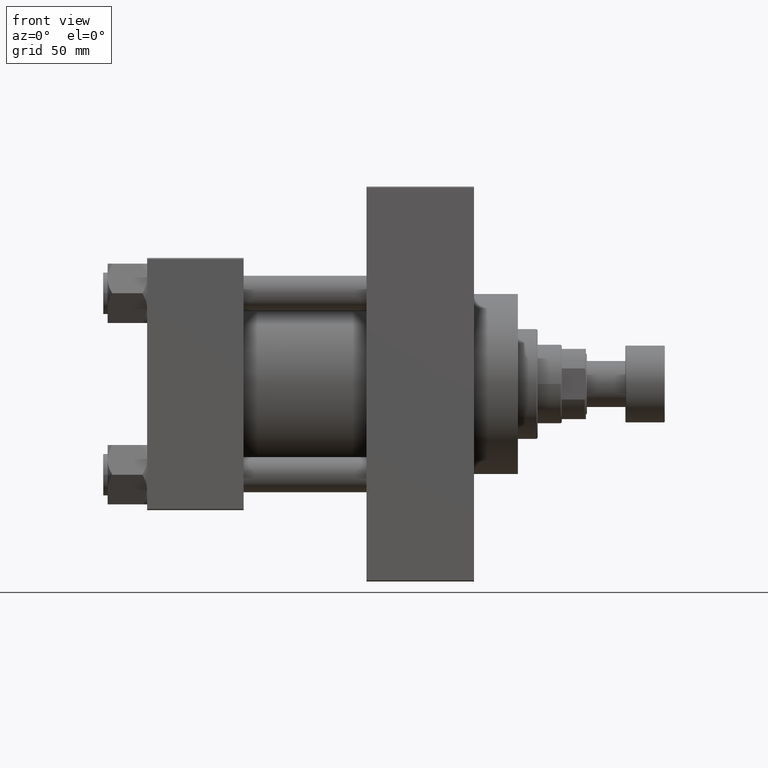
[diagram: clean part render]
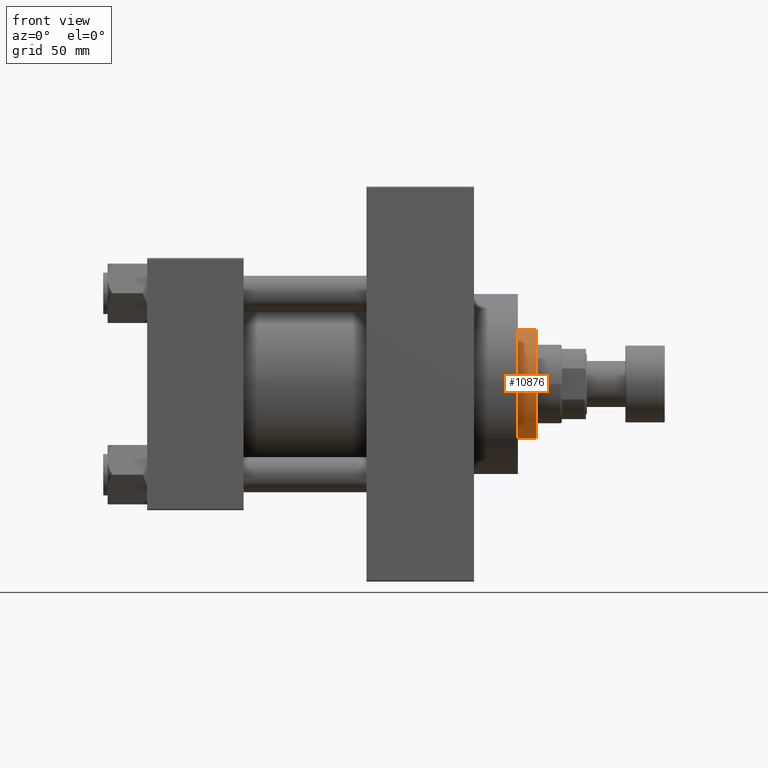
[diagram: same view with one face highlighted and labeled with its STEP entity id]
A machine part, front view. The second image highlights one B-rep face of the part: STEP entity #10876.
In plain terms, the highlighted cylindrical surface (partial cylindrical patch) has radius 25 mm, axis along (-1, 0, 0).
Its self-contained STEP definition (entity closure, byte-faithful):
#120 = VECTOR ( 'NONE', #26146, 1000.000000000000000 ) ;
#175 = EDGE_CURVE ( 'NONE', #46886, #29281, #3511, .T. ) ;
#2387 = EDGE_LOOP ( 'NONE', ( #4216, #9170, #47449, #14925 ) ) ;
#2675 = CARTESIAN_POINT ( 'NONE',  ( 0.000000000000000000, 0.000000000000000000, 43.25999999999999801 ) ) ;
#3511 = LINE ( 'NONE', #40988, #30192 ) ;
#4216 = ORIENTED_EDGE ( 'NONE', *, *, #32961, .T. ) ;
#4488 = CARTESIAN_POINT ( 'NONE',  ( -25.00000000000000000, 0.000000000000000000, 43.25999999999999801 ) ) ;
#4755 = VERTEX_POINT ( 'NONE', #43907 ) ;
#7652 = DIRECTION ( 'NONE',  ( -0.000000000000000000, -0.000000000000000000, -1.000000000000000000 ) ) ;
#9170 = ORIENTED_EDGE ( 'NONE', *, *, #24758, .T. ) ;
#10876 = ADVANCED_FACE ( 'NONE', ( #26507 ), #37941, .T. ) ;
#13404 = CIRCLE ( 'NONE', #42940, 25.00000000000000000 ) ;
#14925 = ORIENTED_EDGE ( 'NONE', *, *, #175, .F. ) ;
#19659 = CARTESIAN_POINT ( 'NONE',  ( 25.00000000000000000, 3.061616997868383043E-15, 51.75999999999996959 ) ) ;
#19741 = VERTEX_POINT ( 'NONE', #19659 ) ;
#19793 = LINE ( 'NONE', #37583, #120 ) ;
#20918 = DIRECTION ( 'NONE',  ( 0.000000000000000000, 0.000000000000000000, 1.000000000000000000 ) ) ;
#22838 = DIRECTION ( 'NONE',  ( -0.000000000000000000, -0.000000000000000000, -1.000000000000000000 ) ) ;
#23529 = DIRECTION ( 'NONE',  ( 1.000000000000000000, 0.000000000000000000, 0.000000000000000000 ) ) ;
#24758 = EDGE_CURVE ( 'NONE', #19741, #4755, #19793, .T. ) ;
#26146 = DIRECTION ( 'NONE',  ( -0.000000000000000000, -0.000000000000000000, -1.000000000000000000 ) ) ;
#26507 = FACE_OUTER_BOUND ( 'NONE', #2387, .T. ) ;
#29281 = VERTEX_POINT ( 'NONE', #4488 ) ;
#30192 = VECTOR ( 'NONE', #7652, 1000.000000000000000 ) ;
#30512 = CIRCLE ( 'NONE', #36741, 25.00000000000000000 ) ;
#31780 = AXIS2_PLACEMENT_3D ( 'NONE', #41370, #22838, #37700 ) ;
#31805 = EDGE_CURVE ( 'NONE', #4755, #29281, #13404, .T. ) ;
#32345 = DIRECTION ( 'NONE',  ( 1.000000000000000000, 0.000000000000000000, 0.000000000000000000 ) ) ;
#32961 = EDGE_CURVE ( 'NONE', #46886, #19741, #30512, .T. ) ;
#36741 = AXIS2_PLACEMENT_3D ( 'NONE', #38896, #38644, #23529 ) ;
#37583 = CARTESIAN_POINT ( 'NONE',  ( 25.00000000000000000, 3.061616997868383043E-15, 52.25999999999999801 ) ) ;
#37700 = DIRECTION ( 'NONE',  ( -1.000000000000000000, 0.000000000000000000, 0.000000000000000000 ) ) ;
#37941 = CYLINDRICAL_SURFACE ( 'NONE', #31780, 25.00000000000000000 ) ;
#38644 = DIRECTION ( 'NONE',  ( 0.000000000000000000, 0.000000000000000000, -1.000000000000000000 ) ) ;
#38896 = CARTESIAN_POINT ( 'NONE',  ( 0.000000000000000000, 0.000000000000000000, 51.75999999999996959 ) ) ;
#40988 = CARTESIAN_POINT ( 'NONE',  ( -25.00000000000000000, 0.000000000000000000, 52.25999999999999801 ) ) ;
#41370 = CARTESIAN_POINT ( 'NONE',  ( 0.000000000000000000, 0.000000000000000000, 52.25999999999999801 ) ) ;
#42940 = AXIS2_PLACEMENT_3D ( 'NONE', #2675, #20918, #32345 ) ;
#43907 = CARTESIAN_POINT ( 'NONE',  ( 25.00000000000000000, 3.061616997868383043E-15, 43.25999999999999801 ) ) ;
#46886 = VERTEX_POINT ( 'NONE', #47175 ) ;
#47175 = CARTESIAN_POINT ( 'NONE',  ( -25.00000000000000000, 0.000000000000000000, 51.75999999999996959 ) ) ;
#47449 = ORIENTED_EDGE ( 'NONE', *, *, #31805, .T. ) ;